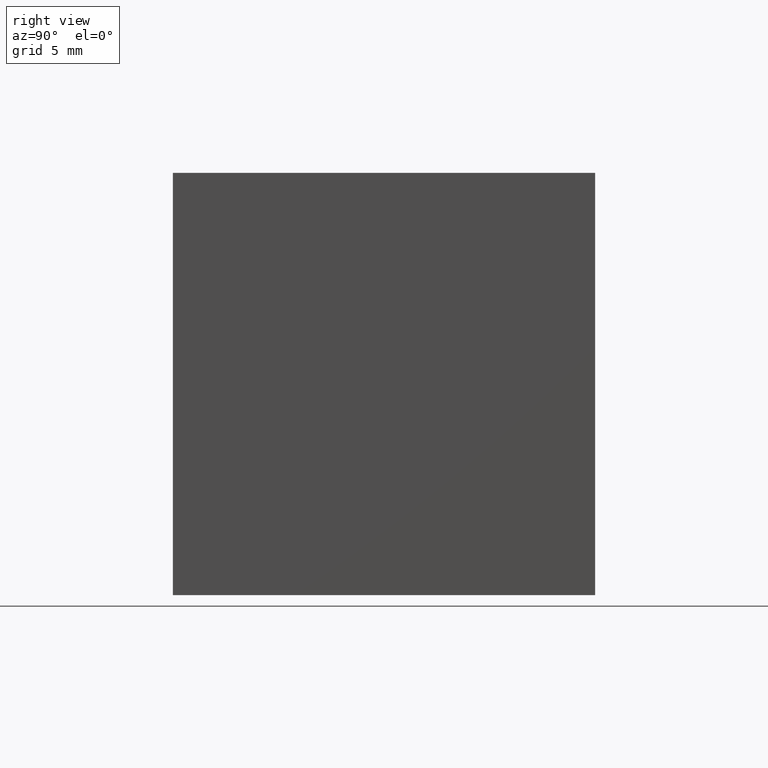
[diagram: clean part render]
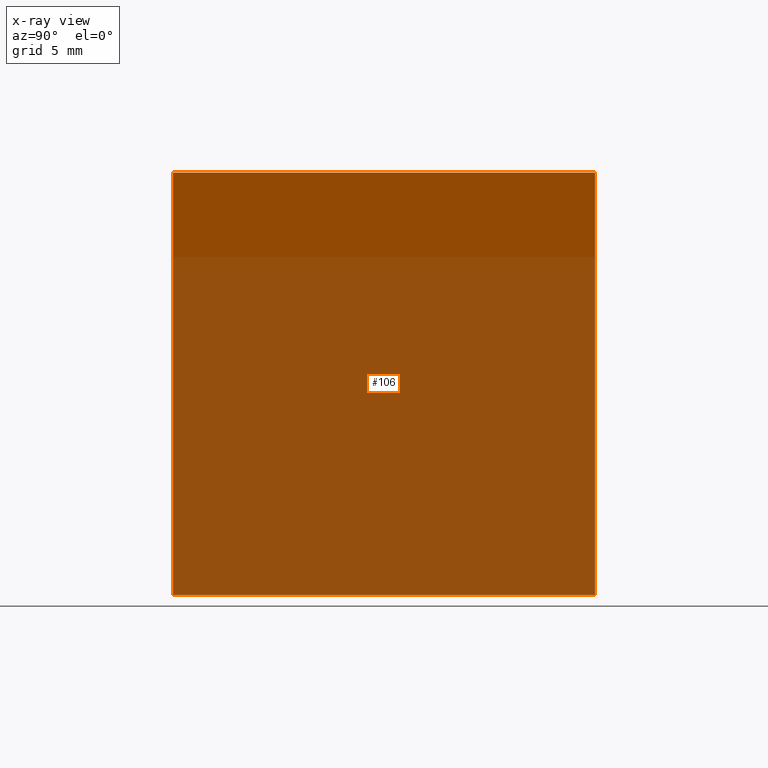
[diagram: x-ray — body ghosted, one internal face saturated and labeled with its STEP entity id]
A machine part, right view, then the same camera in x-ray: the body is ghosted and one INTERNAL B-rep face — a face not visible from any outside direction — is saturated and labeled: STEP entity #106.
In plain terms, the highlighted planar face has unit normal (0.7071, 0, -0.7071).
Its self-contained STEP definition (entity closure, byte-faithful):
#3 = VERTEX_POINT ( 'NONE', #76 ) ;
#10 = DIRECTION ( 'NONE',  ( 0.7071067811865474600, 0.0000000000000000000, -0.7071067811865475700 ) ) ;
#22 = VECTOR ( 'NONE', #271, 1000.000000000000000 ) ;
#23 = FACE_OUTER_BOUND ( 'NONE', #235, .T. ) ;
#29 = DIRECTION ( 'NONE',  ( -0.7071067811865475700, 0.0000000000000000000, -0.7071067811865474600 ) ) ;
#33 = EDGE_CURVE ( 'NONE', #266, #238, #175, .T. ) ;
#47 = VERTEX_POINT ( 'NONE', #281 ) ;
#55 = CARTESIAN_POINT ( 'NONE',  ( -20.00000000000000000, 0.0000000000000000000, -19.99999999999999600 ) ) ;
#56 = CARTESIAN_POINT ( 'NONE',  ( 0.0000000000000000000, 20.00000000000000000, 0.0000000000000000000 ) ) ;
#67 = VECTOR ( 'NONE', #183, 1000.000000000000000 ) ;
#69 = DIRECTION ( 'NONE',  ( -0.0000000000000000000, -1.000000000000000000, -0.0000000000000000000 ) ) ;
#72 = CARTESIAN_POINT ( 'NONE',  ( 0.0000000000000000000, 20.00000000000000000, 0.0000000000000000000 ) ) ;
#76 = CARTESIAN_POINT ( 'NONE',  ( -20.00000000000000000, 0.0000000000000000000, -19.99999999999999600 ) ) ;
#78 = EDGE_CURVE ( 'NONE', #266, #3, #279, .T. ) ;
#92 = CARTESIAN_POINT ( 'NONE',  ( -20.00000000000000000, 20.00000000000000000, -19.99999999999999600 ) ) ;
#102 = CARTESIAN_POINT ( 'NONE',  ( -20.00000000000000000, 20.00000000000000000, -19.99999999999999600 ) ) ;
#106 = ADVANCED_FACE ( 'NONE', ( #23 ), #123, .F. ) ;
#116 = AXIS2_PLACEMENT_3D ( 'NONE', #198, #10, #29 ) ;
#123 = PLANE ( 'NONE',  #116 ) ;
#125 = VECTOR ( 'NONE', #218, 1000.000000000000000 ) ;
#137 = EDGE_CURVE ( 'NONE', #238, #47, #245, .T. ) ;
#150 = ORIENTED_EDGE ( 'NONE', *, *, #223, .T. ) ;
#175 = LINE ( 'NONE', #102, #125 ) ;
#183 = DIRECTION ( 'NONE',  ( -0.0000000000000000000, -1.000000000000000000, -0.0000000000000000000 ) ) ;
#198 = CARTESIAN_POINT ( 'NONE',  ( -20.00000000000000000, 20.00000000000000000, -19.99999999999999600 ) ) ;
#216 = ORIENTED_EDGE ( 'NONE', *, *, #33, .F. ) ;
#218 = DIRECTION ( 'NONE',  ( 0.7071067811865475700, 0.0000000000000000000, 0.7071067811865474600 ) ) ;
#223 = EDGE_CURVE ( 'NONE', #3, #47, #239, .T. ) ;
#224 = ORIENTED_EDGE ( 'NONE', *, *, #137, .F. ) ;
#232 = CARTESIAN_POINT ( 'NONE',  ( -20.00000000000000000, 20.00000000000000000, -19.99999999999999600 ) ) ;
#235 = EDGE_LOOP ( 'NONE', ( #150, #224, #216, #300 ) ) ;
#238 = VERTEX_POINT ( 'NONE', #56 ) ;
#239 = LINE ( 'NONE', #55, #22 ) ;
#245 = LINE ( 'NONE', #72, #67 ) ;
#266 = VERTEX_POINT ( 'NONE', #232 ) ;
#271 = DIRECTION ( 'NONE',  ( 0.7071067811865475700, 0.0000000000000000000, 0.7071067811865474600 ) ) ;
#279 = LINE ( 'NONE', #92, #299 ) ;
#281 = CARTESIAN_POINT ( 'NONE',  ( 0.0000000000000000000, 0.0000000000000000000, 0.0000000000000000000 ) ) ;
#299 = VECTOR ( 'NONE', #69, 1000.000000000000000 ) ;
#300 = ORIENTED_EDGE ( 'NONE', *, *, #78, .T. ) ;